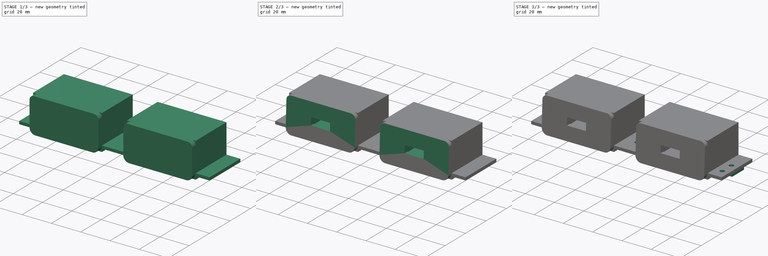
[diagram: build sequence overview — one tinted view per stage of 3, left to right]
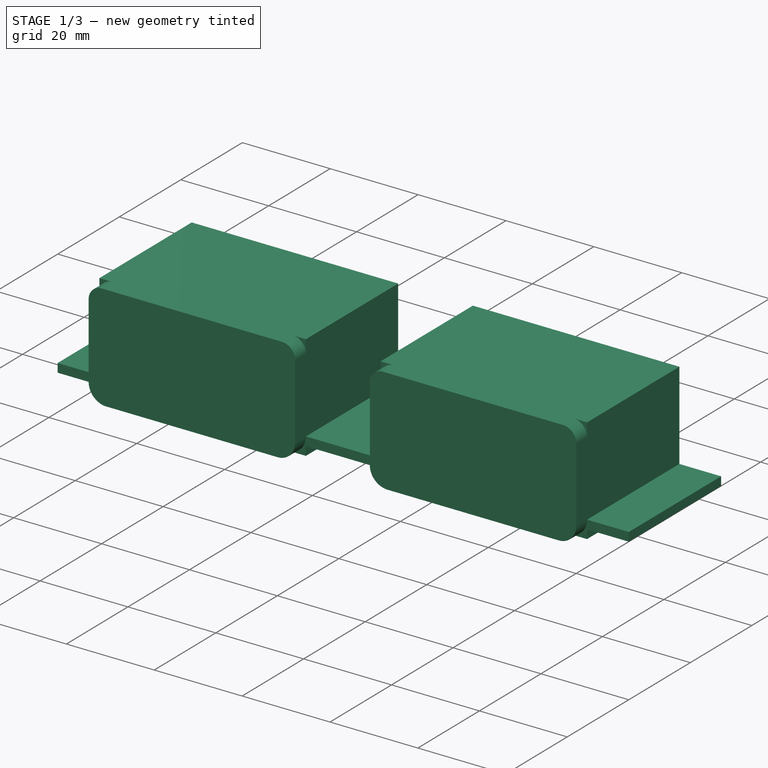
[diagram: stage 1 of 3 — iso view after this stage's code; geometry added in this stage tinted green]
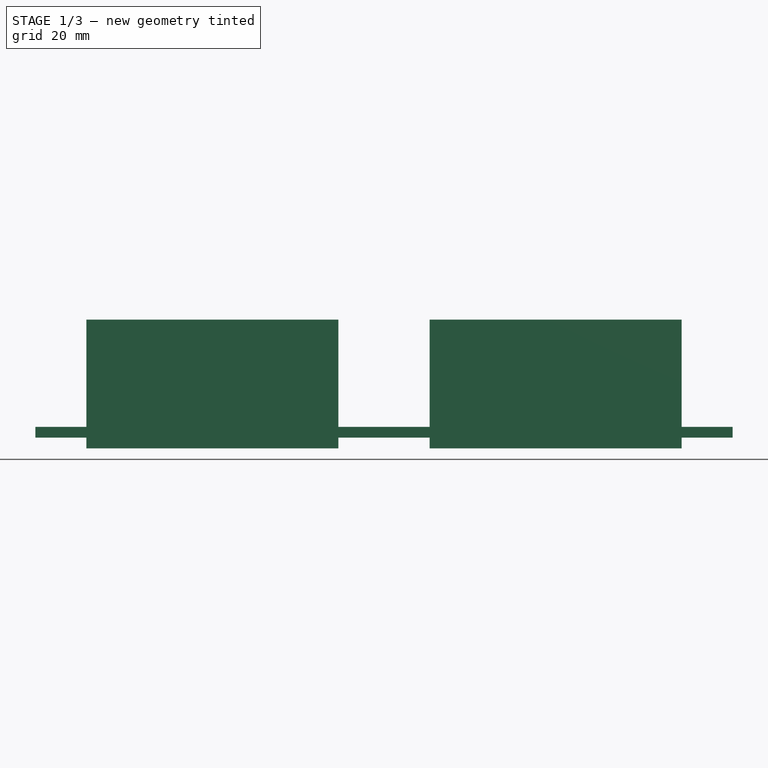
[diagram: stage 1 of 3 — front view after this stage's code; geometry added in this stage tinted green]
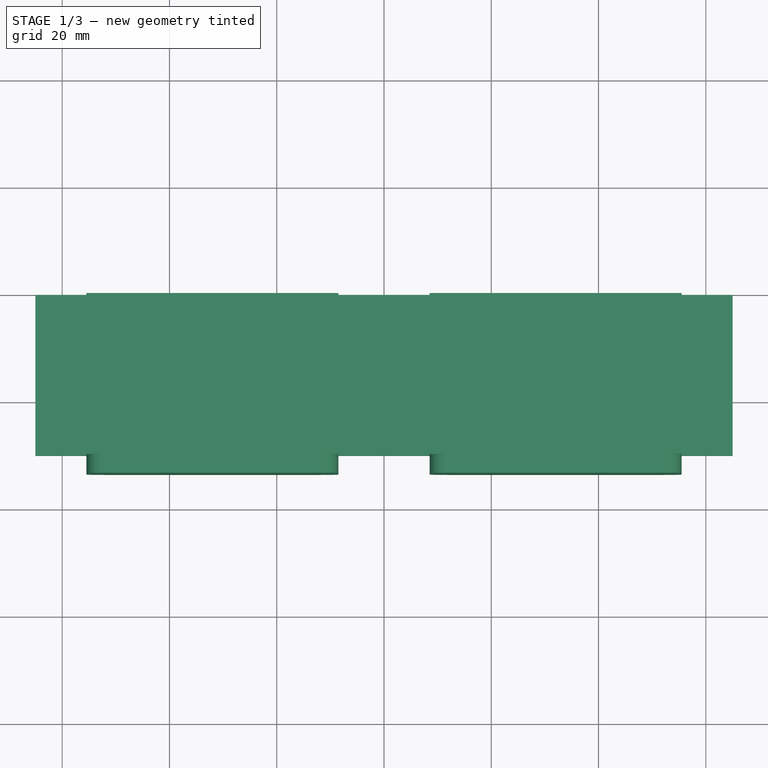
[diagram: stage 1 of 3 — top view after this stage's code; geometry added in this stage tinted green]
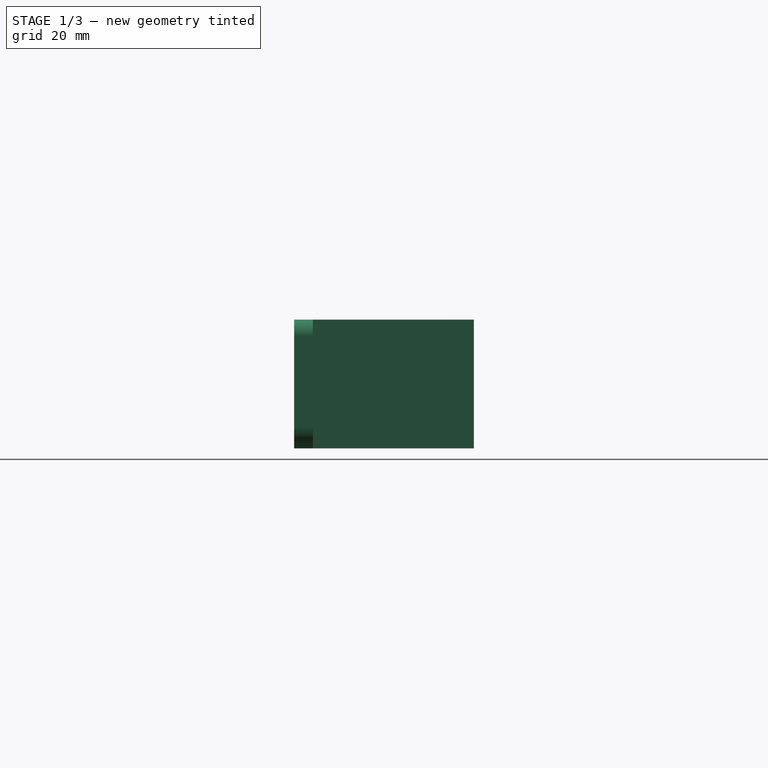
[diagram: stage 1 of 3 — right view after this stage's code; geometry added in this stage tinted green]
FCSTD DOCUMENT  (FreeCAD 0.16R6706 (Git))
Label: PS manettes part 1
License: All rights reserved
LicenseURL: http://en.wikipedia.org/wiki/All_rights_reserved
objects: Sketcher::SketchObject×7, PartDesign::Pocket×4, PartDesign::Pad×3
note: 21 computed .brp shape members not serialized (recipe doc carries the construction recipe); baked Part::Feature solids carry a one-line shape summary decoded from their .brp

FEATURE [Sketcher::SketchObject] Sketch
  Placement = pos=(0,0,0) rot=(1,0,0;1.5708rad)
  sketch-geometry (20):
    g0: LineSegment StartX=-55.5 StartY=22 StartZ=0 EndX=-8.5 EndY=22 EndZ=0
    g1: LineSegment StartX=-8.5 StartY=22 StartZ=0 EndX=-8.5 EndY=2 EndZ=0
    g2: LineSegment StartX=-8.5 StartY=-2 StartZ=0 EndX=-55.5 EndY=-2 EndZ=0
    g3: LineSegment StartX=-55.5 StartY=-2 StartZ=0 EndX=-55.5 EndY=0 EndZ=0
    g4: LineSegment StartX=8.5 StartY=22 StartZ=0 EndX=55.5 EndY=22 EndZ=0
    g5: LineSegment StartX=55.5 StartY=22 StartZ=0 EndX=55.5 EndY=2 EndZ=0
    g6: LineSegment StartX=55.5 StartY=-2 StartZ=0 EndX=8.5 EndY=-2 EndZ=0
    g7: LineSegment StartX=8.5 StartY=-2 StartZ=0 EndX=8.5 EndY=0 EndZ=0
    g8: LineSegment StartX=-65 StartY=2 StartZ=0 EndX=-55.5 EndY=2 EndZ=0
    g9: LineSegment StartX=65 StartY=2 StartZ=0 EndX=65 EndY=0 EndZ=0
    g10: LineSegment StartX=65 StartY=0 StartZ=0 EndX=55.5 EndY=0 EndZ=0
    g11: LineSegment StartX=-65 StartY=0 StartZ=0 EndX=-65 EndY=2 EndZ=0
    g12: LineSegment StartX=-55.5 StartY=2 StartZ=0 EndX=-55.5 EndY=22 EndZ=0
    g13: LineSegment StartX=-8.5 StartY=0 StartZ=0 EndX=-8.5 EndY=-2 EndZ=0
    g14: LineSegment StartX=-8.5 StartY=2 StartZ=0 EndX=8.5 EndY=2 EndZ=0
    g15: LineSegment StartX=-55.5 StartY=0 StartZ=0 EndX=-65 EndY=0 EndZ=0
    g16: LineSegment StartX=55.5 StartY=2 StartZ=0 EndX=65 EndY=2 EndZ=0
    g17: LineSegment StartX=8.5 StartY=0 StartZ=0 EndX=-8.5 EndY=0 EndZ=0
    g18: LineSegment StartX=8.5 StartY=2 StartZ=0 EndX=8.5 EndY=22 EndZ=0
    g19: LineSegment StartX=55.5 StartY=0 StartZ=0 EndX=55.5 EndY=-2 EndZ=0
  constraints (52):
    c: Coincident(g0,g1)
    c: Coincident(g13,g2)
    c: Coincident(g2,g3)
    c: Coincident(g12,g0)
    c: Horizontal(g0)
    c: Horizontal(g2)
    c: Vertical(g1)
    c: Vertical(g3)
    c: Coincident(g4,g5)
    c: Coincident(g19,g6)
    c: Coincident(g6,g7)
    c: Coincident(g18,g4)
    c: Horizontal(g4)
    c: Horizontal(g6)
    c: Vertical(g5)
    c: Vertical(g7)
    c: Coincident(g16,g9)
    c: Coincident(g9,g10)
    c: Coincident(g15,g11)
    c: Coincident(g11,g8)
    c: Horizontal(g8)
    c: Horizontal(g10)
    c: Vertical(g9)
    c: Vertical(g11)
    c: DistanceX(g0,g0) = 47
    c: DistanceX(g4,g4) = 47
    c: DistanceY(g9,g9) = 2
    c: DistanceY(g-1,g9) = 0
    c: DistanceX(g15,g-1) = 65
    c: DistanceX(g8,g16) = 130
    c: DistanceX(g0,g-1) = 8.5
    c: DistanceX(g-1,g4) = 8.5
    c: DistanceY(g3,g12) = 24
    c: DistanceY(g19,g5) = 24
    c: DistanceY(g8,g0) = 20
    c: DistanceY(g16,g4) = 20
    c: Tangent(g3,g12)
    c: Tangent(g1,g13)
    c: Coincident(g8,g12)
    c: Coincident(g14,g1)
    c: Tangent(g8,g14)
    c: Coincident(g17,g13)
    c: Coincident(g15,g3)
    c: Tangent(g10,g15)
    c: Tangent(g14,g16)
    c: Tangent(g10,g17)
    c: Coincident(g7,g17)
    c: Coincident(g18,g14)
    c: Tangent(g7,g18)
    c: Coincident(g5,g16)
    c: Coincident(g19,g10)
    c: Tangent(g5,g19)
FEATURE [PartDesign::Pad] Pad
  Length = 30
  Length2 = 100
  Placement = pos=(0,0,0) rot=(1,0,0;1.5708rad)
  Sketch = -> Sketch
  Type = 0
FEATURE [Sketcher::SketchObject] Sketch001
  ExternalGeometry = -> [Pad]
  Placement = pos=(0,-30,0) rot=(1,0,0;1.5708rad)
  Support = -> Pad [Face22]
  sketch-geometry (28):
    g0: LineSegment [constr] StartX=-55.5 StartY=22 StartZ=0 EndX=-8.5 EndY=22 EndZ=0
    g1: LineSegment [constr] StartX=-8.5 StartY=22 StartZ=0 EndX=-8.5 EndY=-2 EndZ=0
    g2: LineSegment [constr] StartX=-8.5 StartY=-2 StartZ=0 EndX=-55.5 EndY=-2 EndZ=0
    g3: LineSegment [constr] StartX=-55.5 StartY=-2 StartZ=0 EndX=-55.5 EndY=22 EndZ=0
    g4: GeomPoint [constr] X=-52.5 Y=19 Z=0
    g5: GeomPoint [constr] X=-11.5 Y=19 Z=0
    g6: GeomPoint [constr] X=-12.5 Y=2 Z=0
    g7: GeomPoint [constr] X=-51.5 Y=2 Z=0
    g8: ArcOfCircle CenterX=-52.5 CenterY=19 CenterZ=0 NormalX=0 NormalY=0 NormalZ=1 Radius=3 StartAngle=1.5708 EndAngle=3.14159
    g9: ArcOfCircle CenterX=-11.5 CenterY=19 CenterZ=0 NormalX=0 NormalY=0 NormalZ=1 Radius=3 StartAngle=2.31578e-07 EndAngle=1.5708
    g10: ArcOfCircle CenterX=-12.5 CenterY=2 CenterZ=0 NormalX=0 NormalY=0 NormalZ=1 Radius=4 StartAngle=4.7124 EndAngle=6.28318
    g11: ArcOfCircle CenterX=-51.5 CenterY=2 CenterZ=0 NormalX=0 NormalY=0 NormalZ=1 Radius=4 StartAngle=3.14159 EndAngle=4.71238
    g12: LineSegment StartX=-52.5 StartY=22 StartZ=0 EndX=-11.5 EndY=22 EndZ=0
    g13: LineSegment StartX=-8.5 StartY=19 StartZ=0 EndX=-8.5 EndY=2 EndZ=0
    g14: LineSegment StartX=-51.5 StartY=-2 StartZ=0 EndX=-12.5 EndY=-2 EndZ=0
    g15: LineSegment StartX=-55.5 StartY=19 StartZ=0 EndX=-55.5 EndY=2 EndZ=0
    g16: GeomPoint [constr] X=11.5 Y=19 Z=0
    g17: GeomPoint [constr] X=52.5 Y=19 Z=0
    g18: GeomPoint [constr] X=12.5 Y=2 Z=0
    g19: GeomPoint [constr] X=51.5 Y=2 Z=0
    g20: ArcOfCircle CenterX=11.5 CenterY=19 CenterZ=0 NormalX=0 NormalY=0 NormalZ=1 Radius=3 StartAngle=1.5708 EndAngle=3.14159
    g21: ArcOfCircle CenterX=52.5 CenterY=19 CenterZ=0 NormalX=0 NormalY=0 NormalZ=1 Radius=3 StartAngle=6.28318 EndAngle=7.85398
    g22: ArcOfCircle CenterX=51.5 CenterY=2 CenterZ=0 NormalX=0 NormalY=0 NormalZ=1 Radius=4 StartAngle=4.71239 EndAngle=6.28319
    g23: ArcOfCircle CenterX=12.5 CenterY=2 CenterZ=0 NormalX=0 NormalY=0 NormalZ=1 Radius=4 StartAngle=3.14159 EndAngle=4.71239
    g24: LineSegment StartX=11.5 StartY=22 StartZ=0 EndX=52.5 EndY=22 EndZ=0
    g25: LineSegment StartX=55.5 StartY=19 StartZ=0 EndX=55.5 EndY=2 EndZ=0
    g26: LineSegment StartX=51.5 StartY=-2 StartZ=0 EndX=12.5 EndY=-2 EndZ=0
    g27: LineSegment StartX=8.5 StartY=2 StartZ=0 EndX=8.5 EndY=19 EndZ=0
  constraints (75):
    c: Coincident(g0,g1)
    c: Coincident(g1,g2)
    c: Coincident(g2,g3)
    c: Coincident(g3,g0)
    c: Horizontal(g0)
    c: Horizontal(g2)
    c: Vertical(g1)
    c: Vertical(g3)
    c: Coincident(g0,g-4)
    c: Coincident(g1,g-7)
    c: DistanceY(g4,g0) = 3
    c: DistanceX(g0,g4) = 3
    c: DistanceX(g5,g0) = 3
    c: DistanceY(g5,g0) = 3
    c: DistanceX(g2,g7) = 4
    c: DistanceY(g2,g7) = 4
    c: DistanceX(g6,g1) = 4
    c: DistanceY(g1,g6) = 4
    c: Coincident(g8,g4)
    c: PointOnObject(g8,g-4)
    c: PointOnObject(g8,g-3)
    c: Coincident(g9,g5)
    c: PointOnObject(g9,g-8)
    c: PointOnObject(g9,g-3)
    c: Coincident(g10,g6)
    c: PointOnObject(g10,g1)
    c: PointOnObject(g10,g-5)
    c: Coincident(g11,g7)
    c: PointOnObject(g11,g-5)
    c: PointOnObject(g11,g3)
    c: Coincident(g12,g8)
    c: Coincident(g12,g9)
    c: Coincident(g13,g9)
    c: Coincident(g13,g10)
    c: Tangent(g13,g10)
    c: Coincident(g14,g11)
    c: Coincident(g14,g10)
    c: Coincident(g15,g8)
    c: Coincident(g15,g11)
    c: DistanceX(g-10,g16) = 3
    c: DistanceY(g16,g-10) = 3
    c: DistanceY(g17,g-13) = 3
    c: DistanceX(g17,g-13) = 3
    c: DistanceY(g-12,g18) = 4
    c: DistanceX(g-12,g18) = 4
    c: DistanceX(g19,g-14) = 4
    c: DistanceY(g-14,g19) = 4
    c: Coincident(g20,g16)
    c: PointOnObject(g20,g-9)
    c: PointOnObject(g20,g-10)
    c: Coincident(g21,g17)
    c: PointOnObject(g21,g-10)
    c: PointOnObject(g21,g-13)
    c: Coincident(g22,g19)
    c: PointOnObject(g22,g-12)
    c: PointOnObject(g23,g-12)
    c: Coincident(g24,g20)
    c: Coincident(g24,g21)
    c: Coincident(g25,g21)
    c: Coincident(g25,g22)
    c: Coincident(g26,g22)
    c: Coincident(g26,g23)
    c: Coincident(g27,g23)
    c: Coincident(g27,g20)
    c: Vertical(g27)
    c: DistanceX(g-10,g20) = 3
    c: DistanceX(g21,g-13) = 3
    c: DistanceX(g22,g-14) = 4
    c: DistanceY(g-14,g22) = 4
    c: DistanceY(g-12,g23) = 4
    c: DistanceX(g-12,g23) = 4
    c: DistanceX(g23,g23) = 4
    c: DistanceX(g0,g8) = 3
    c: DistanceY(g2,g11) = 4
    c: DistanceX(g9,g0) = 3
FEATURE [PartDesign::Pad] Pad001
  Length = 3.5
  Length2 = 100
  Placement = pos=(0,0,0) rot=(1,0,0;1.5708rad)
  Sketch = -> Sketch001
  Type = 0
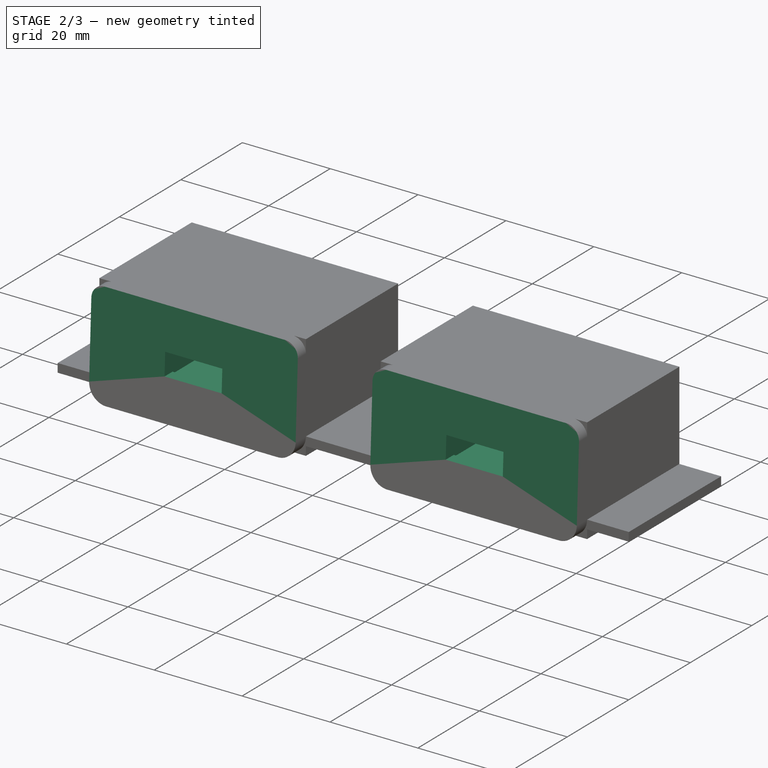
[diagram: stage 2 of 3 — iso view after this stage's code; geometry added in this stage tinted green]
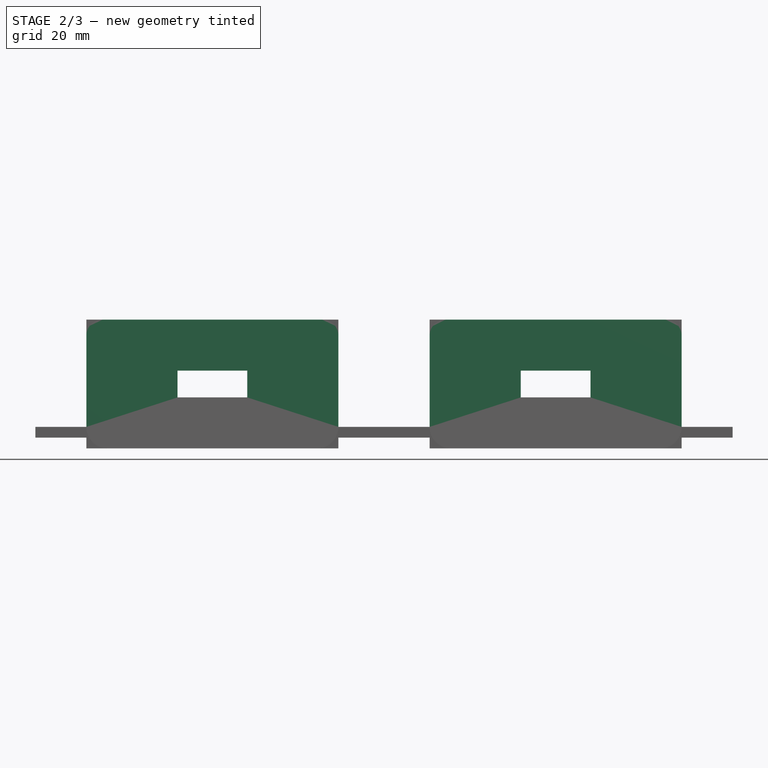
[diagram: stage 2 of 3 — front view after this stage's code; geometry added in this stage tinted green]
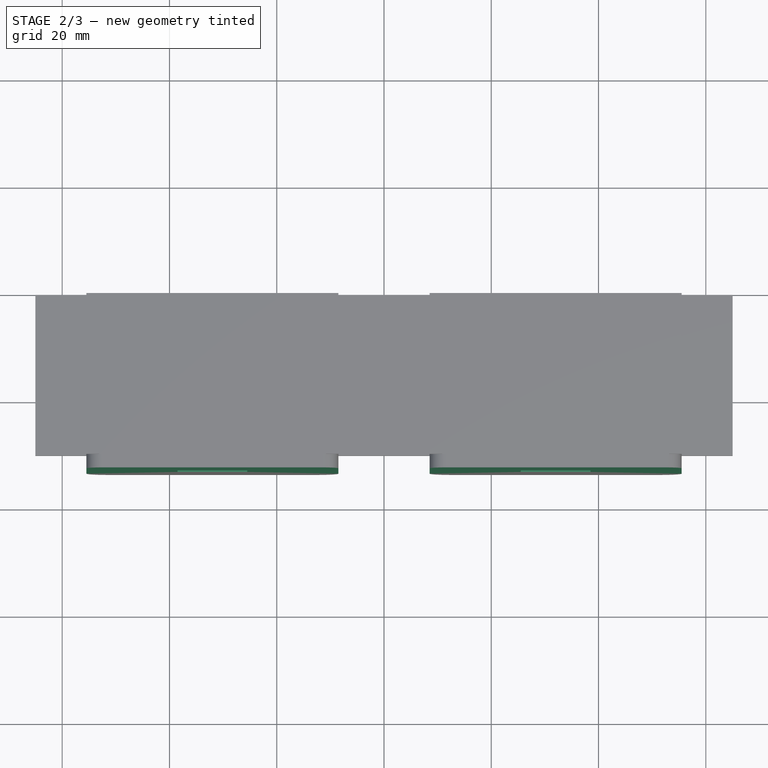
[diagram: stage 2 of 3 — top view after this stage's code; geometry added in this stage tinted green]
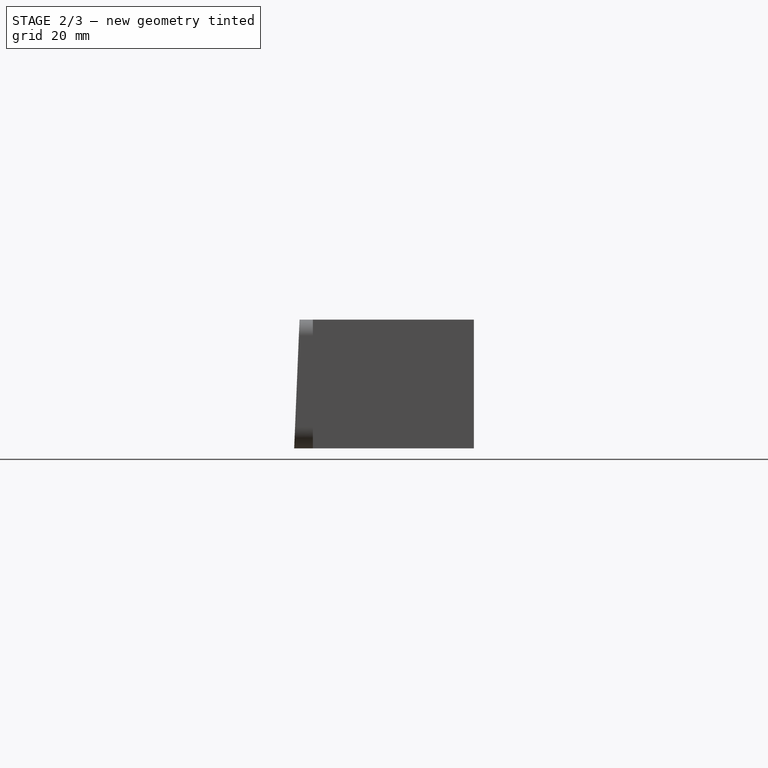
[diagram: stage 2 of 3 — right view after this stage's code; geometry added in this stage tinted green]
FEATURE [Sketcher::SketchObject] Sketch002
  ExternalGeometry = -> [Pad001]
  Placement = pos=(0,0,0) rot=(-1,0,0;1.5708rad)
  Support = -> Pad001 [Face1]
  sketch-geometry (8):
    g0: LineSegment StartX=-38.5 StartY=-7.5 StartZ=0 EndX=-25.5 EndY=-7.5 EndZ=0
    g1: LineSegment StartX=-25.5 StartY=-7.5 StartZ=0 EndX=-25.5 EndY=-12.5 EndZ=0
    g2: LineSegment StartX=-25.5 StartY=-12.5 StartZ=0 EndX=-38.5 EndY=-12.5 EndZ=0
    g3: LineSegment StartX=-38.5 StartY=-12.5 StartZ=0 EndX=-38.5 EndY=-7.5 EndZ=0
    g4: LineSegment StartX=25.5 StartY=-7.5 StartZ=0 EndX=38.5 EndY=-7.5 EndZ=0
    g5: LineSegment StartX=38.5 StartY=-7.5 StartZ=0 EndX=38.5 EndY=-12.5 EndZ=0
    g6: LineSegment StartX=38.5 StartY=-12.5 StartZ=0 EndX=25.5 EndY=-12.5 EndZ=0
    g7: LineSegment StartX=25.5 StartY=-12.5 StartZ=0 EndX=25.5 EndY=-7.5 EndZ=0
  constraints (24):
    c: Coincident(g0,g1)
    c: Coincident(g1,g2)
    c: Coincident(g2,g3)
    c: Coincident(g3,g0)
    c: Horizontal(g0)
    c: Horizontal(g2)
    c: Vertical(g1)
    c: Vertical(g3)
    c: Coincident(g4,g5)
    c: Coincident(g5,g6)
    c: Coincident(g6,g7)
    c: Coincident(g7,g4)
    c: Horizontal(g4)
    c: Horizontal(g6)
    c: Vertical(g5)
    c: Vertical(g7)
    c: DistanceX(g0,g0) = 13
    c: DistanceY(g3,g3) = 5
    c: DistanceY(g7,g7) = 5
    c: DistanceX(g4,g4) = 13
    c: DistanceX(g5,g-3) = 17
    c: DistanceX(g1,g-6) = 17
    c: DistanceY(g-3,g6) = 9.5
    c: DistanceY(g-6,g1) = 9.5
FEATURE [PartDesign::Pocket] Pocket
  Length = 5
  Placement = pos=(0,0,0) rot=(1,0,0;1.5708rad)
  Sketch = -> Sketch002
  Type = 1
FEATURE [Sketcher::SketchObject] Sketch003
  ExternalGeometry = -> [Pocket]
  Placement = pos=(0,0,0) rot=(-1,0,0;1.5708rad)
  Support = -> Pocket [Face1]
  sketch-geometry (8):
    g0: LineSegment StartX=-40.75 StartY=-5.25 StartZ=0 EndX=-23.25 EndY=-5.25 EndZ=0
    g1: LineSegment StartX=-23.25 StartY=-5.25 StartZ=0 EndX=-23.25 EndY=-14.75 EndZ=0
    g2: LineSegment StartX=-23.25 StartY=-14.75 StartZ=0 EndX=-40.75 EndY=-14.75 EndZ=0
    g3: LineSegment StartX=-40.75 StartY=-14.75 StartZ=0 EndX=-40.75 EndY=-5.25 EndZ=0
    g4: LineSegment StartX=23.25 StartY=-5.25 StartZ=0 EndX=40.75 EndY=-5.25 EndZ=0
    g5: LineSegment StartX=40.75 StartY=-5.25 StartZ=0 EndX=40.75 EndY=-14.75 EndZ=0
    g6: LineSegment StartX=40.75 StartY=-14.75 StartZ=0 EndX=23.25 EndY=-14.75 EndZ=0
    g7: LineSegment StartX=23.25 StartY=-14.75 StartZ=0 EndX=23.25 EndY=-5.25 EndZ=0
  constraints (24):
    c: Coincident(g0,g1)
    c: Coincident(g1,g2)
    c: Coincident(g2,g3)
    c: Coincident(g3,g0)
    c: Horizontal(g0)
    c: Horizontal(g2)
    c: Vertical(g1)
    c: Vertical(g3)
    c: Coincident(g4,g5)
    c: Coincident(g5,g6)
    c: Coincident(g6,g7)
    c: Coincident(g7,g4)
    c: Horizontal(g4)
    c: Horizontal(g6)
    c: Vertical(g5)
    c: Vertical(g7)
    c: DistanceX(g0,g0) = 17.5
    c: DistanceX(g4,g4) = 17.5
    c: DistanceY(g1,g1) = 9.5
    c: DistanceY(g5,g5) = 9.5
    c: DistanceX(g-3,g0) = 14.75
    c: DistanceX(g-6,g4) = 14.75
    c: DistanceY(g-4,g2) = 7.25
    c: DistanceY(g-5,g6) = 7.25
FEATURE [PartDesign::Pocket] Pocket001
  Length = 30.5
  Placement = pos=(0,0,0) rot=(1,0,0;1.5708rad)
  Sketch = -> Sketch003
  Type = 0
FEATURE [Sketcher::SketchObject] Sketch007
  ExternalGeometry = -> [Pocket001]
  Placement = pos=(55.5,0,0) rot=(0.707107,0,0.707107;3.14159rad)
  Support = -> Pocket001 [Face12]
  sketch-geometry (3):
    g0: LineSegment StartX=-2 StartY=33.5 StartZ=0 EndX=22.001 EndY=33.5 EndZ=0
    g1: LineSegment StartX=22.001 StartY=33.5 StartZ=0 EndX=22.001 EndY=32.5 EndZ=0
    g2: LineSegment StartX=22.001 StartY=32.5 StartZ=0 EndX=-2 EndY=33.5 EndZ=0
  constraints (8):
    c: Coincident(g-4,g0)
    c: Horizontal(g0)
    c: Coincident(g0,g1)
    c: Vertical(g1)
    c: Coincident(g1,g2)
    c: Coincident(g2,g0)
    c: DistanceY(g1,g1) = 1
    c: DistanceX(g-5,g0) = 0.001
FEATURE [PartDesign::Pocket] Pocket002
  Length = 5
  Midplane = true
  Placement = pos=(0,0,0) rot=(1,0,0;1.5708rad)
  Sketch = -> Sketch007
  Type = 1
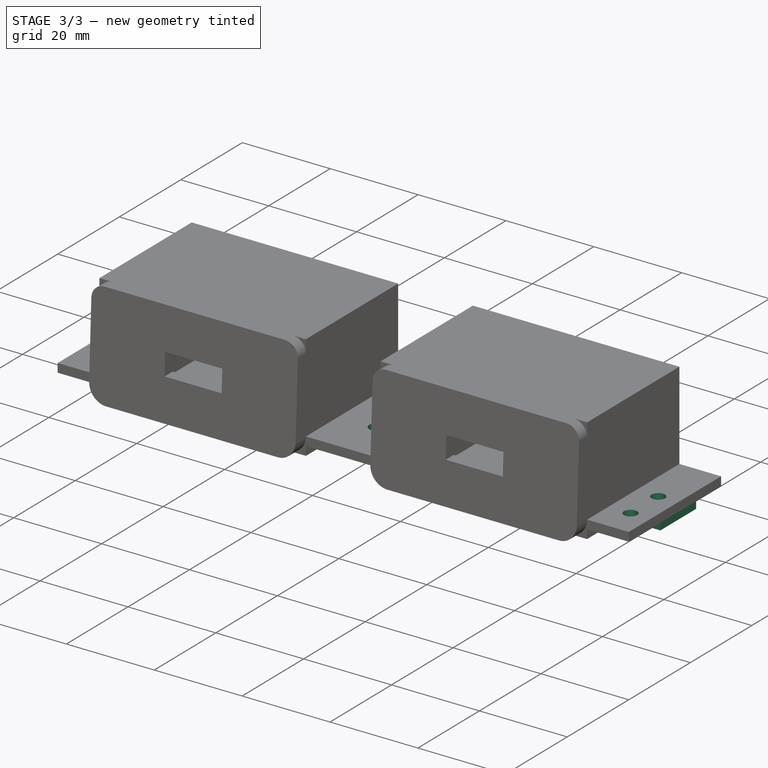
[diagram: stage 3 of 3 — iso view after this stage's code; geometry added in this stage tinted green]
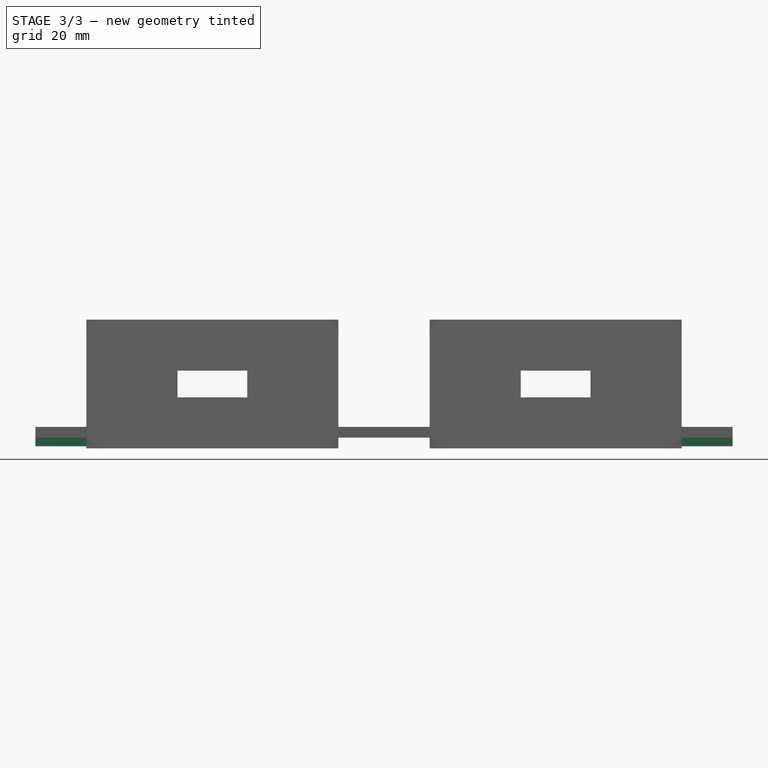
[diagram: stage 3 of 3 — front view after this stage's code; geometry added in this stage tinted green]
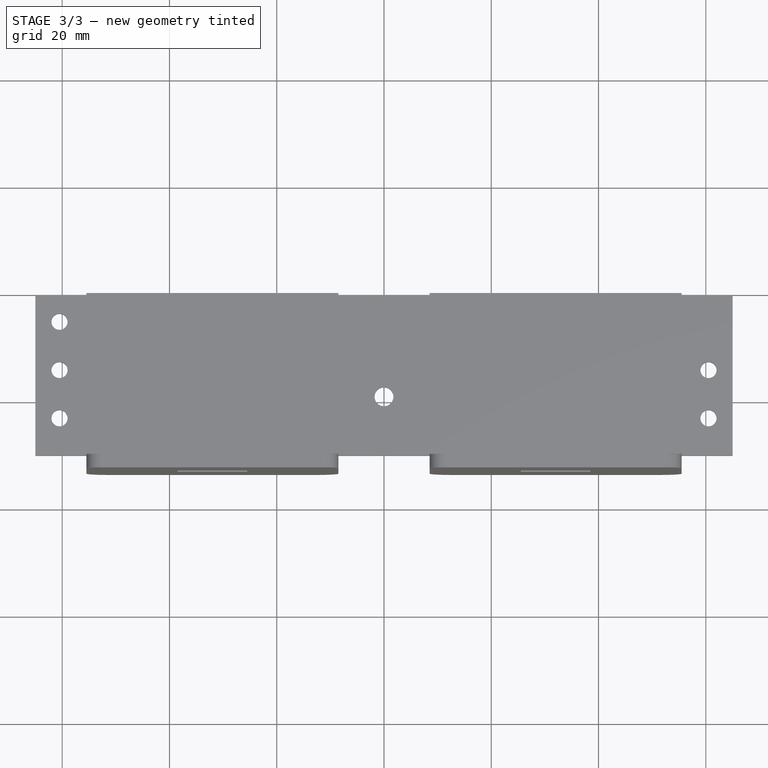
[diagram: stage 3 of 3 — top view after this stage's code; geometry added in this stage tinted green]
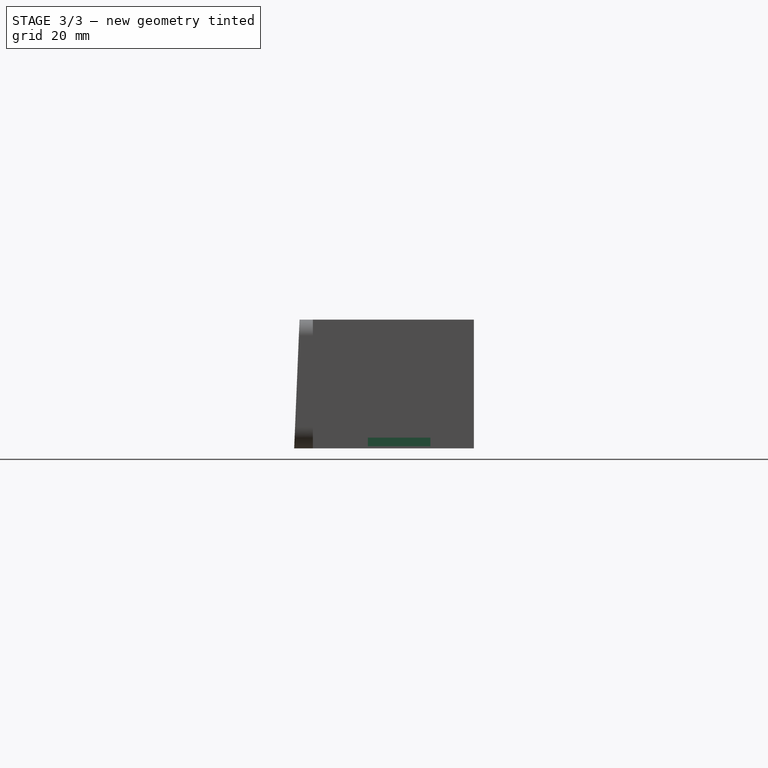
[diagram: stage 3 of 3 — right view after this stage's code; geometry added in this stage tinted green]
FEATURE [Sketcher::SketchObject] Sketch008
  ExternalGeometry = -> [Pocket002]
  Placement = pos=(0,0,0) rot=(1,0,0;3.14159rad)
  Support = -> Pocket002 [Face18]
  sketch-geometry (8):
    g0: LineSegment StartX=-65 StartY=18.5034 StartZ=0 EndX=-55.5 EndY=18.5034 EndZ=0
    g1: LineSegment StartX=-55.5 StartY=18.5034 StartZ=0 EndX=-55.5 EndY=0.50335 EndZ=0
    g2: LineSegment StartX=-55.5 StartY=0.50335 StartZ=0 EndX=-65 EndY=0.50335 EndZ=0
    g3: LineSegment StartX=-65 StartY=0.50335 StartZ=0 EndX=-65 EndY=18.5034 EndZ=0
    g4: LineSegment StartX=55.5 StartY=19.746 StartZ=0 EndX=65 EndY=19.746 EndZ=0
    g5: LineSegment StartX=65 StartY=19.746 StartZ=0 EndX=65 EndY=8.10868 EndZ=0
    g6: LineSegment StartX=65 StartY=8.10868 StartZ=0 EndX=55.5 EndY=8.10868 EndZ=0
    g7: LineSegment StartX=55.5 StartY=8.10868 StartZ=0 EndX=55.5 EndY=19.746 EndZ=0
  constraints (21):
    c: Coincident(g0,g1)
    c: Coincident(g1,g2)
    c: Coincident(g2,g3)
    c: Coincident(g3,g0)
    c: Horizontal(g0)
    c: Horizontal(g2)
    c: Vertical(g1)
    c: Vertical(g3)
    c: PointOnObject(g0,g-5)
    c: PointOnObject(g1,g-6)
    c: Coincident(g4,g5)
    c: Coincident(g5,g6)
    c: Coincident(g6,g7)
    c: Coincident(g7,g4)
    c: Horizontal(g4)
    c: Horizontal(g6)
    c: Vertical(g5)
    c: Vertical(g7)
    c: PointOnObject(g4,g-4)
    c: PointOnObject(g5,g-3)
    c: DistanceY(g2,g0) = 18
FEATURE [PartDesign::Pad] Pad002
  Length = 1.6
  Length2 = 100
  Placement = pos=(0,0,0) rot=(1,0,0;1.5708rad)
  Sketch = -> Sketch008
  Type = 0
FEATURE [Sketcher::SketchObject] Sketch009
  ExternalGeometry = -> [Pad002]
  Placement = pos=(0,0,0) rot=(1,0,0;3.14159rad)
  Support = -> Pad002 [Face17]
  sketch-geometry (6):
    g0: Circle CenterX=0 CenterY=19 CenterZ=0 NormalX=0 NormalY=0 NormalZ=1 Radius=1.75
    g1: Circle CenterX=-60.5 CenterY=23 CenterZ=0 NormalX=0 NormalY=0 NormalZ=1 Radius=1.5
    g2: Circle CenterX=-60.5 CenterY=14 CenterZ=0 NormalX=0 NormalY=0 NormalZ=1 Radius=1.5
    g3: Circle CenterX=60.5 CenterY=23 CenterZ=0 NormalX=0 NormalY=0 NormalZ=1 Radius=1.5
    g4: Circle CenterX=60.5 CenterY=14 CenterZ=0 NormalX=0 NormalY=0 NormalZ=1 Radius=1.5
    g5: Circle CenterX=-60.5 CenterY=5 CenterZ=0 NormalX=0 NormalY=0 NormalZ=1 Radius=1.5
  constraints (18):
    c: PointOnObject(g0,g-2)
    c: Radius(g0) = 1.75
    c: DistanceY(g0,g-3) = 11
    c: Radius(g3) = 1.5
    c: Radius(g4) = 1.5
    c: Radius(g1) = 1.5
    c: Radius(g2) = 1.5
    c: DistanceY(g4,g3) = 9
    c: DistanceY(g2,g1) = 9
    c: DistanceX(g2,g1) = 0
    c: DistanceX(g3,g4) = 0
    c: DistanceX(g2,g-1) = 60.5
    c: DistanceX(g-1,g4) = 60.5
    c: DistanceY(g1,g-4) = 7
    c: DistanceY(g3,g-6) = 7
    c: Radius(g5) = 1.5
    c: DistanceX(g5,g2) = 0
    c: DistanceY(g5,g2) = 9
FEATURE [PartDesign::Pocket] Pocket003
  Length = 5
  Midplane = true
  Placement = pos=(0,0,0) rot=(1,0,0;1.5708rad)
  Sketch = -> Sketch009
  Type = 1
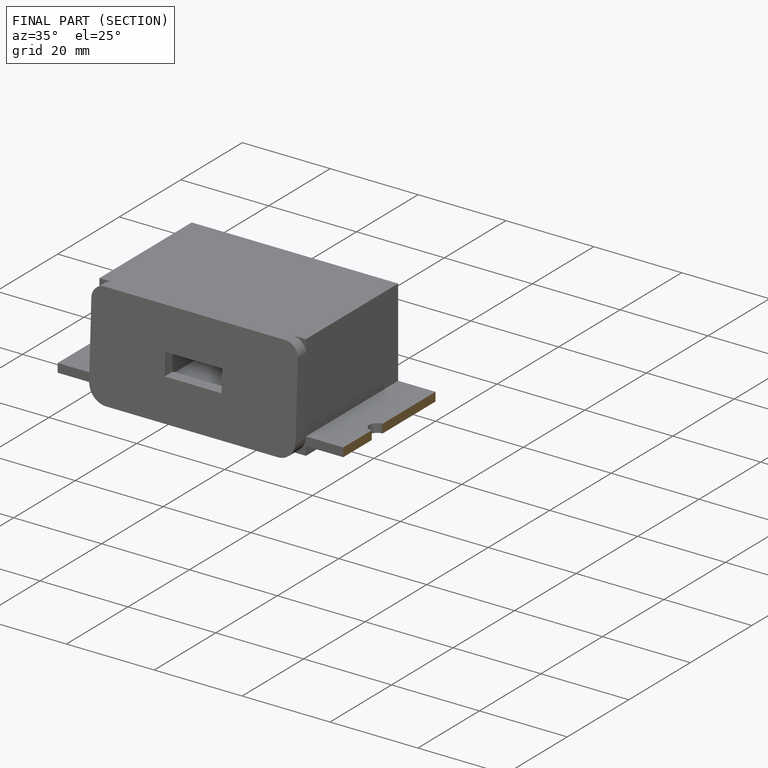
[diagram: finished part — half-section view (interior)]
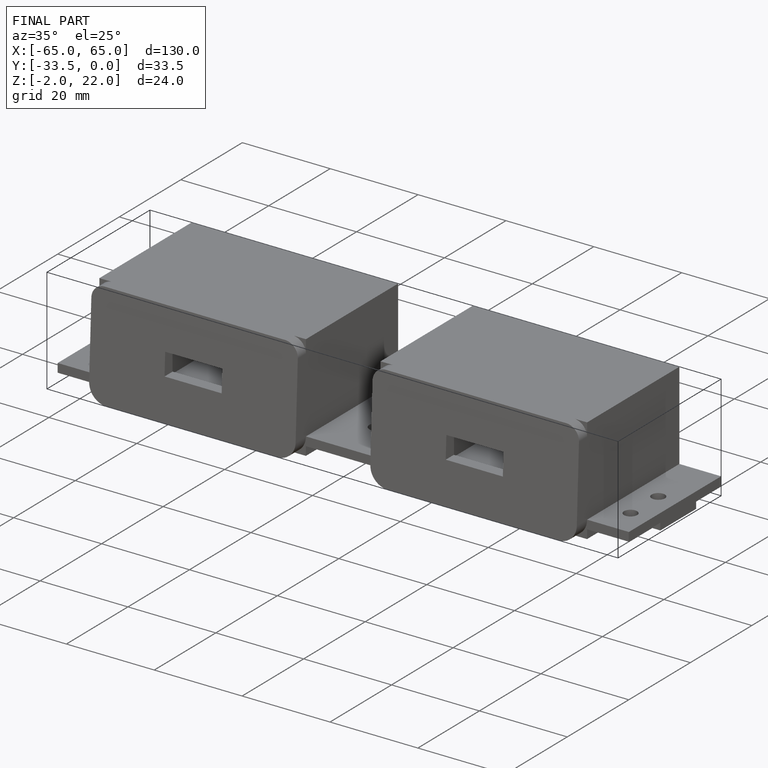
[diagram: finished part — iso view with bounding-box wireframe]
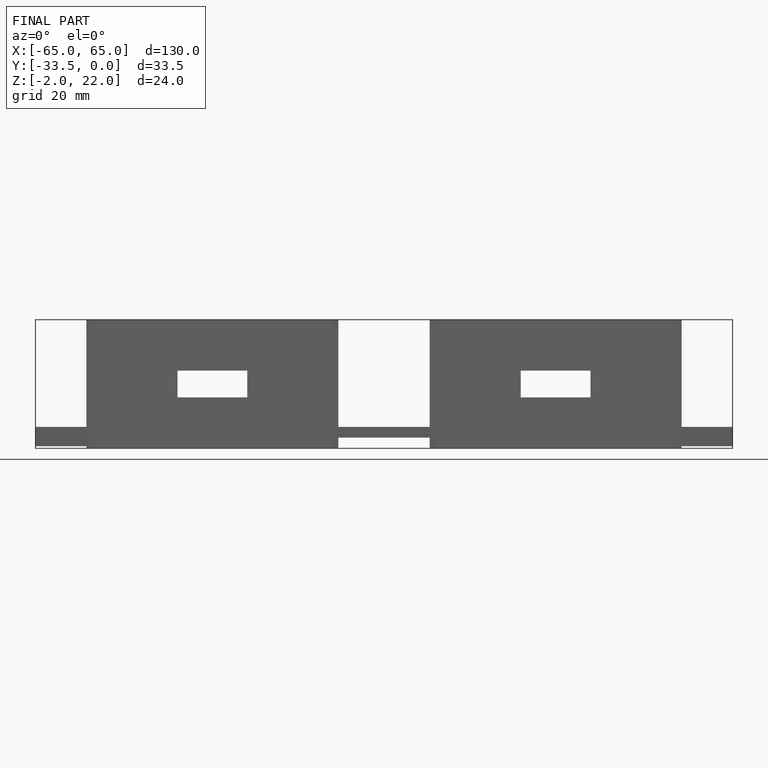
[diagram: finished part — front view with bounding-box wireframe]
